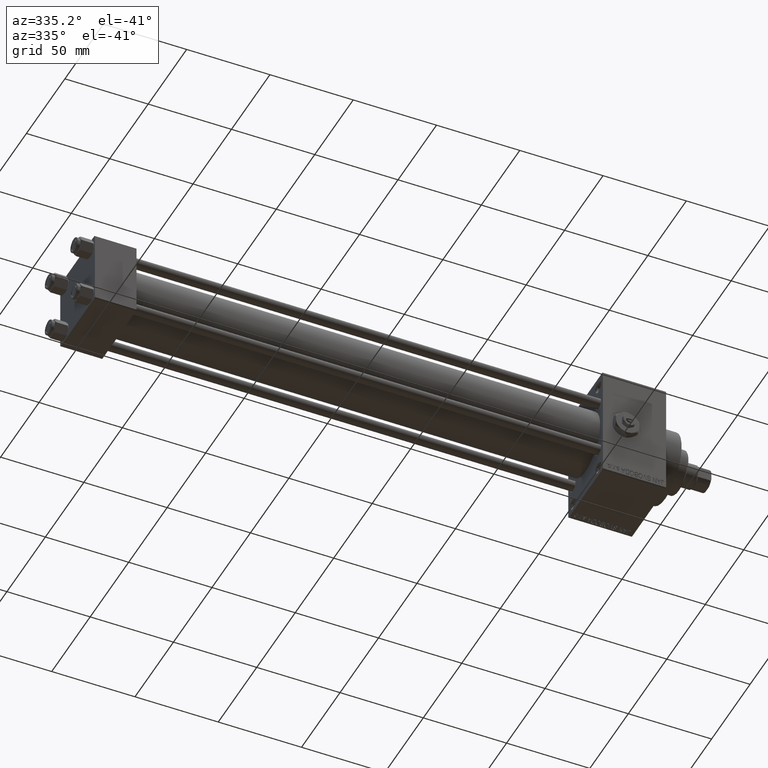
[diagram: clean part render]
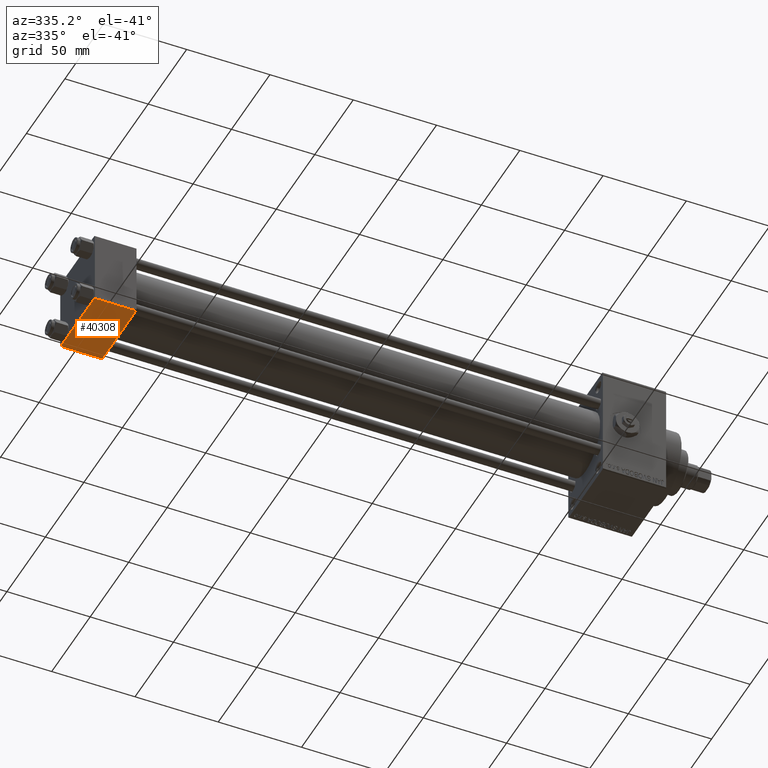
[diagram: same view with one face highlighted and labeled with its STEP entity id]
A machine part, auxiliary view. The second image highlights one B-rep face of the part: STEP entity #40308.
In plain terms, the highlighted planar face has unit normal (0, 0, -1).
Its self-contained STEP definition (entity closure, byte-faithful):
#5350 = EDGE_CURVE ( 'NONE', #23136, #5857, #10018, .T. ) ;
#5609 = CARTESIAN_POINT ( 'NONE',  ( 25.00000000000000000, 21.99999999999999289, -22.49999999999999645 ) ) ;
#5717 = CARTESIAN_POINT ( 'NONE',  ( 0.000000000000000000, 21.99999999999999289, -22.49999999999999645 ) ) ;
#5857 = VERTEX_POINT ( 'NONE', #19269 ) ;
#5906 = EDGE_CURVE ( 'NONE', #36946, #23136, #27367, .T. ) ;
#8033 = CARTESIAN_POINT ( 'NONE',  ( 25.00000000000000000, -21.99999999999997158, -22.50000000000000711 ) ) ;
#8925 = DIRECTION ( 'NONE',  ( 1.000000000000000000, 0.000000000000000000, 0.000000000000000000 ) ) ;
#10018 = LINE ( 'NONE', #32388, #35289 ) ;
#11274 = DIRECTION ( 'NONE',  ( 0.000000000000000000, 1.000000000000000000, 2.312964634635742957E-16 ) ) ;
#11323 = CARTESIAN_POINT ( 'NONE',  ( 0.000000000000000000, 22.50000000000000000, -22.49999999999999645 ) ) ;
#16059 = EDGE_CURVE ( 'NONE', #39113, #5857, #40335, .T. ) ;
#19269 = CARTESIAN_POINT ( 'NONE',  ( 0.000000000000000000, -21.99999999999997158, -22.50000000000000711 ) ) ;
#21161 = VECTOR ( 'NONE', #35208, 1000.000000000000000 ) ;
#23136 = VERTEX_POINT ( 'NONE', #8033 ) ;
#23915 = ORIENTED_EDGE ( 'NONE', *, *, #27699, .T. ) ;
#26478 = AXIS2_PLACEMENT_3D ( 'NONE', #37072, #37314, #11274 ) ;
#27367 = LINE ( 'NONE', #31279, #21161 ) ;
#27699 = EDGE_CURVE ( 'NONE', #39113, #36946, #35204, .T. ) ;
#27847 = CARTESIAN_POINT ( 'NONE',  ( 25.00000000000000000, 21.99999999999999289, -22.49999999999999645 ) ) ;
#30410 = ORIENTED_EDGE ( 'NONE', *, *, #16059, .F. ) ;
#31279 = CARTESIAN_POINT ( 'NONE',  ( 25.00000000000000000, 22.50000000000000000, -22.49999999999999645 ) ) ;
#31894 = EDGE_LOOP ( 'NONE', ( #30410, #23915, #33518, #33786 ) ) ;
#32388 = CARTESIAN_POINT ( 'NONE',  ( 0.000000000000000000, -21.99999999999998579, -22.50000000000000711 ) ) ;
#33390 = PLANE ( 'NONE',  #26478 ) ;
#33518 = ORIENTED_EDGE ( 'NONE', *, *, #5906, .T. ) ;
#33786 = ORIENTED_EDGE ( 'NONE', *, *, #5350, .T. ) ;
#35204 = LINE ( 'NONE', #27847, #36480 ) ;
#35208 = DIRECTION ( 'NONE',  ( 0.000000000000000000, -1.000000000000000000, -2.312964634635742957E-16 ) ) ;
#35289 = VECTOR ( 'NONE', #36303, 1000.000000000000000 ) ;
#36303 = DIRECTION ( 'NONE',  ( -1.000000000000000000, 0.000000000000000000, 0.000000000000000000 ) ) ;
#36480 = VECTOR ( 'NONE', #8925, 1000.000000000000000 ) ;
#36946 = VERTEX_POINT ( 'NONE', #5609 ) ;
#37072 = CARTESIAN_POINT ( 'NONE',  ( 25.00000000000000000, 22.50000000000000000, -22.49999999999999645 ) ) ;
#37314 = DIRECTION ( 'NONE',  ( 0.000000000000000000, 2.312964634635742957E-16, -1.000000000000000000 ) ) ;
#37792 = VECTOR ( 'NONE', #44749, 1000.000000000000000 ) ;
#39113 = VERTEX_POINT ( 'NONE', #5717 ) ;
#40308 = ADVANCED_FACE ( 'NONE', ( #44700 ), #33390, .T. ) ;
#40335 = LINE ( 'NONE', #11323, #37792 ) ;
#44700 = FACE_OUTER_BOUND ( 'NONE', #31894, .T. ) ;
#44749 = DIRECTION ( 'NONE',  ( 0.000000000000000000, -1.000000000000000000, -2.312964634635742957E-16 ) ) ;